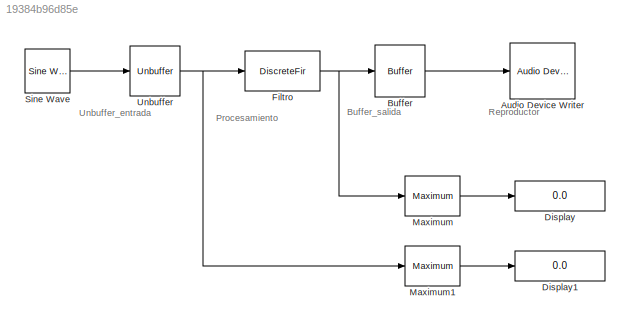
MODEL slx_19384b96d85e
KIND model
CONFIG AbsTol = auto
CONFIG EnableMultiTasking = off
CONFIG FixedStep = auto
CONFIG MaxStep = auto
CONFIG MinStep = auto
CONFIG RelTol = 1e-3
CONFIG SampleTimeConstraint = Unconstrained
CONFIG Solver = VariableStepAuto
CONFIG SolverName = VariableStepAuto
CONFIG StartTime = 0.0
CONFIG StopTime = 10.0
BLOCK [Reference] Audio Device Writer  REF=dspsnks4/Audio Device
Writer
  Ports = [1]
  SourceBlock = dspsnks4/Audio Device\nWriter
  SourceProductBaseCode = DS
  SourceProductName = DSP System Toolbox
  SourceType = Audio Device Writer
BLOCK [Buffer] Buffer
  OutputFrames = off
BLOCK [Display] Display
  Decimation = 1
  Ports = [1]
BLOCK [Display] Display1
  Decimation = 1
  Ports = [1]
BLOCK [DiscreteFir] Filtro
  Coefficients = [0.000192222707916954661 0.000309219800150138484 0.000422005901286501197 0.000529581846294212332 0.000631004652221989638 0.000725398396577585803 0.000811964437746644577 0.000889990851918536483 0.000958860968432039169 0.00101806089436112779 0.00106718592944590176 0.00110594578403453835 0.0011341685254226898 0.00115180319172456273 0.00115892102704004537 0.00115571530703697969 0.00114249973997937351 ...<+11787ch>
  InputPortMap = u0
  InputProcessing = Columns as channels (frame based)
  OutputPortMap = o0
  Ports = [1, 1]
  Tag = BlockMethodSubSystem
BLOCK [Reference] Maximum  REF=dspstat3/Maximum
  Ports = [1, 1]
  SourceBlock = dspstat3/Maximum
  SourceProductBaseCode = DS
  SourceProductName = DSP System Toolbox
  SourceType = Maximum
  UserDataPersistent = on
BLOCK [Reference] Maximum1  REF=dspstat3/Maximum
  Ports = [1, 1]
  SourceBlock = dspstat3/Maximum
  SourceProductBaseCode = DS
  SourceProductName = DSP System Toolbox
  SourceType = Maximum
  UserDataPersistent = on
BLOCK [Reference] Sine Wave  REF=dspsrcs4/Sine Wave
  Ports = [0, 1]
  SourceBlock = dspsrcs4/Sine Wave
  SourceProductBaseCode = DS
  SourceProductName = DSP System Toolbox
  SourceType = Sine Wave
BLOCK [Unbuffer] Unbuffer
  Ports = [1, 1]
ANNOTATION (root): Buffer_salida
ANNOTATION (root): Procesamiento
ANNOTATION (root): Reproductor
ANNOTATION (root): Unbuffer_entrada
LINE Buffer:1 -> Audio Device Writer:1
NET Filtro:1 -> Buffer:1, Maximum:1
LINE Maximum1:1 -> Display1:1
LINE Maximum:1 -> Display:1
LINE Sine Wave:1 -> Unbuffer:1
NET Unbuffer:1 -> Filtro:1, Maximum1:1
note: NET lines group one-source signal fan-out (src -> all destinations, sorted); 1:1 wires keep LINE
